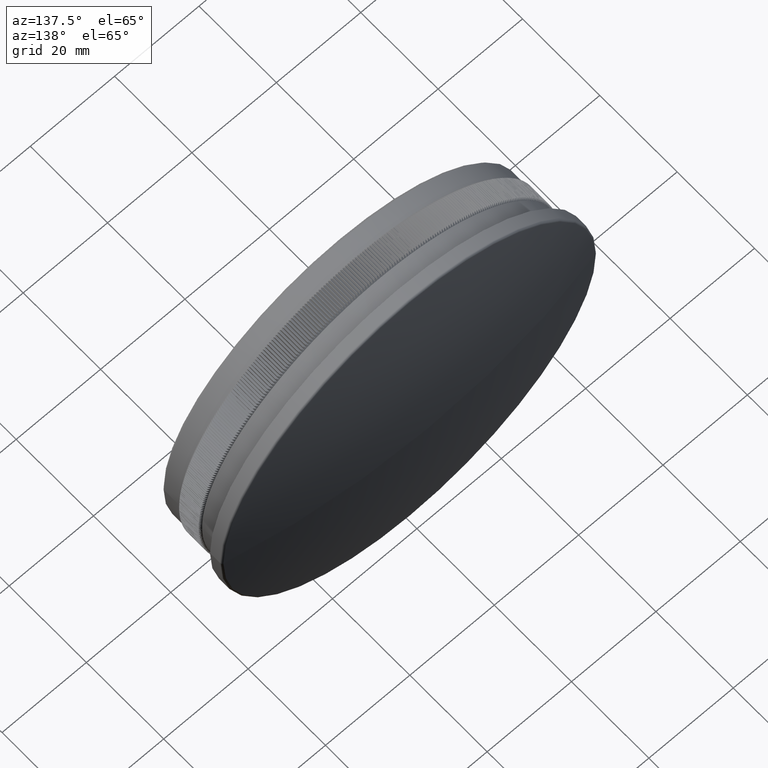
[diagram: clean part render]
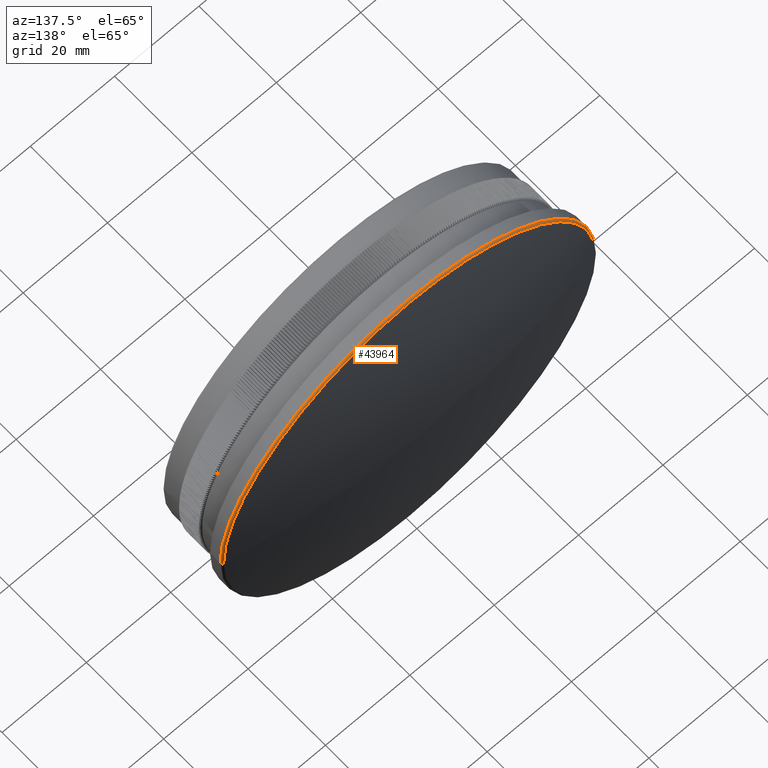
[diagram: same view with one face highlighted and labeled with its STEP entity id]
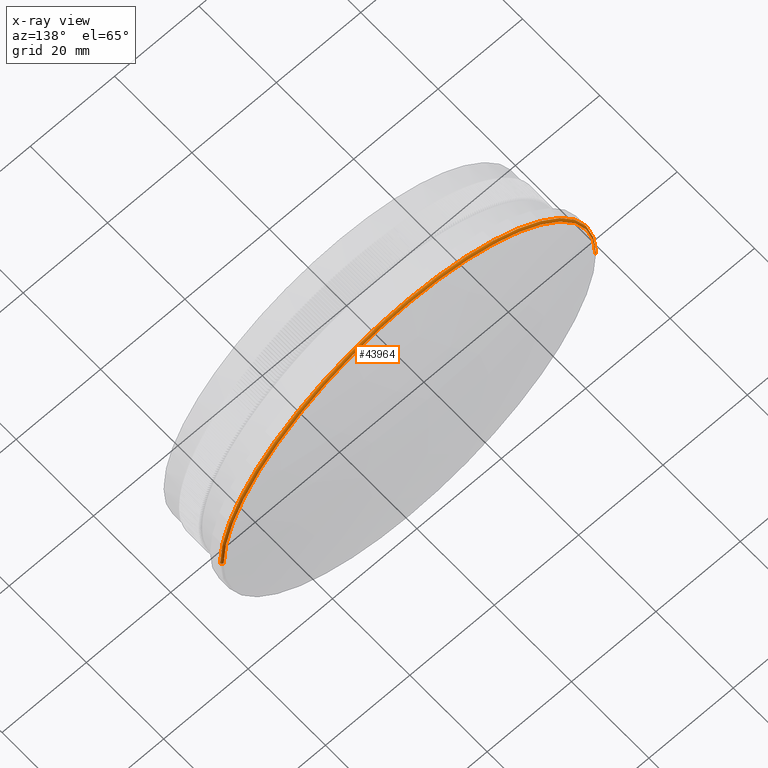
[diagram: x-ray of the same camera — body ghosted, the highlighted face saturated]
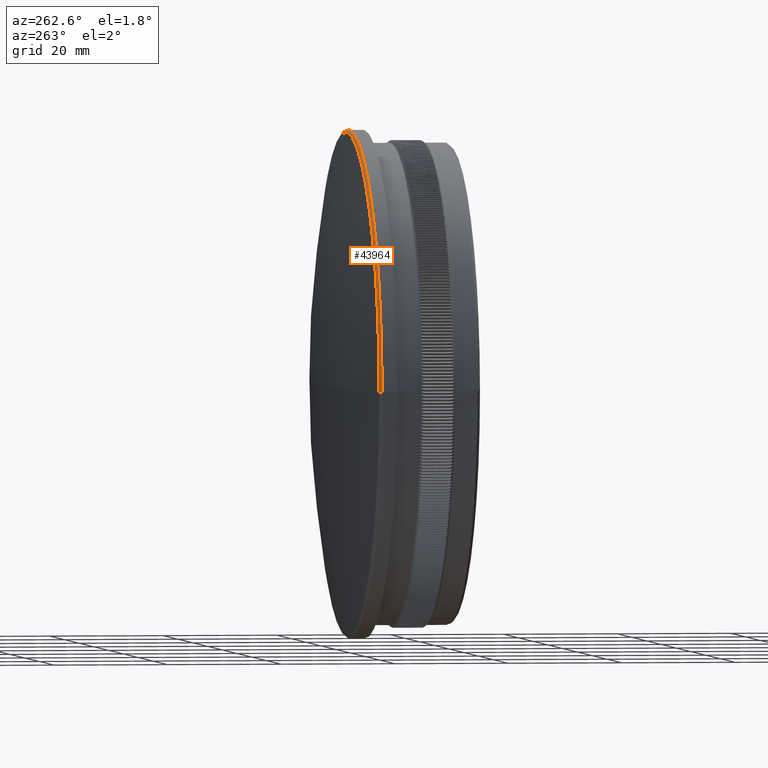
[diagram: same view with one face highlighted and labeled with its STEP entity id]
A machine part, auxiliary view. The second image highlights one B-rep face of the part: STEP entity #43964.
The next image is the same camera in x-ray: the body ghosted, the highlighted face saturated — about 0% of this face is hidden behind the body in this view.
A second angle (auxiliary view) of the same face is appended — the face is thin or edge-on in the first view.
In plain terms, the highlighted toroidal blend (fillet) surface has major radius 43.95 mm and minor (blend) radius 0.5 mm.
Its self-contained STEP definition (entity closure, byte-faithful):
#1572 = CARTESIAN_POINT ( 'NONE',  ( 6.938893903907228400E-015, 17.60070358833272800, 0.0000000000000000000 ) ) ;
#7108 = EDGE_CURVE ( 'NONE', #60075, #30478, #75101, .T. ) ;
#8927 = CIRCLE ( 'NONE', #58449, 44.45000000000001000 ) ;
#11584 = CARTESIAN_POINT ( 'NONE',  ( -44.45000000000000300, 17.60070358833287700, 5.443555022209985700E-015 ) ) ;
#12976 = TOROIDAL_SURFACE ( 'NONE', #72184, 43.94999999999998900, 0.5000000000000187600 ) ;
#13982 = EDGE_LOOP ( 'NONE', ( #42073, #35530, #33912, #36981 ) ) ;
#14466 = DIRECTION ( 'NONE',  ( 1.000000000000000000, -3.245114972974590400E-015, 0.0000000000000000000 ) ) ;
#15842 = DIRECTION ( 'NONE',  ( 1.000000000000000000, 0.0000000000000000000, -1.224646799147344600E-016 ) ) ;
#25392 = DIRECTION ( 'NONE',  ( -3.245114972974590400E-015, -1.000000000000000000, -0.0000000000000000000 ) ) ;
#27116 = AXIS2_PLACEMENT_3D ( 'NONE', #78009, #42586, #54892 ) ;
#30478 = VERTEX_POINT ( 'NONE', #33245 ) ;
#31963 = AXIS2_PLACEMENT_3D ( 'NONE', #68521, #50451, #49671 ) ;
#33245 = CARTESIAN_POINT ( 'NONE',  ( 44.45000000000001700, 17.60070358833258600, 0.0000000000000000000 ) ) ;
#33912 = ORIENTED_EDGE ( 'NONE', *, *, #64761, .F. ) ;
#35530 = ORIENTED_EDGE ( 'NONE', *, *, #70868, .T. ) ;
#36981 = ORIENTED_EDGE ( 'NONE', *, *, #7108, .F. ) ;
#41167 = FACE_OUTER_BOUND ( 'NONE', #13982, .T. ) ;
#42073 = ORIENTED_EDGE ( 'NONE', *, *, #43943, .T. ) ;
#42586 = DIRECTION ( 'NONE',  ( 0.0000000000000000000, 0.0000000000000000000, -1.000000000000000000 ) ) ;
#43943 = EDGE_CURVE ( 'NONE', #60075, #63791, #55251, .T. ) ;
#43964 = ADVANCED_FACE ( 'NONE', ( #41167 ), #12976, .T. ) ;
#46165 = CARTESIAN_POINT ( 'NONE',  ( 44.06010608514615300, 18.08842958724361700, 0.0000000000000000000 ) ) ;
#49671 = DIRECTION ( 'NONE',  ( 1.000000000000000000, -3.228483489240929000E-015, 0.0000000000000000000 ) ) ;
#49800 = CARTESIAN_POINT ( 'NONE',  ( -44.06010608514547800, 18.08842958724389800, 5.395806788726705300E-015 ) ) ;
#50451 = DIRECTION ( 'NONE',  ( -3.245114972974590400E-015, -1.000000000000000000, -0.0000000000000000000 ) ) ;
#51839 = DIRECTION ( 'NONE',  ( 1.224646799147353200E-016, -3.974119664518481600E-031, 1.000000000000000000 ) ) ;
#54892 = DIRECTION ( 'NONE',  ( -1.000000000000000000, 0.0000000000000000000, 0.0000000000000000000 ) ) ;
#55031 = AXIS2_PLACEMENT_3D ( 'NONE', #69403, #51839, #15842 ) ;
#55251 = CIRCLE ( 'NONE', #31963, 44.06010608514616700 ) ;
#55715 = DIRECTION ( 'NONE',  ( -3.245114972974590400E-015, -1.000000000000000000, -0.0000000000000000000 ) ) ;
#58449 = AXIS2_PLACEMENT_3D ( 'NONE', #61378, #25392, #67348 ) ;
#60075 = VERTEX_POINT ( 'NONE', #46165 ) ;
#61378 = CARTESIAN_POINT ( 'NONE',  ( 5.194467181792720200E-015, 17.60070358833273100, 0.0000000000000000000 ) ) ;
#62331 = CIRCLE ( 'NONE', #55031, 0.5000000000000213200 ) ;
#63791 = VERTEX_POINT ( 'NONE', #49800 ) ;
#64761 = EDGE_CURVE ( 'NONE', #30478, #78050, #8927, .T. ) ;
#67348 = DIRECTION ( 'NONE',  ( 1.000000000000000000, -3.278217592397115100E-015, 0.0000000000000000000 ) ) ;
#68521 = CARTESIAN_POINT ( 'NONE',  ( 6.777194123567939000E-015, 18.08842958724377300, 0.0000000000000000000 ) ) ;
#69403 = CARTESIAN_POINT ( 'NONE',  ( -43.94999999999998200, 17.60070358833287000, 5.382322682252615800E-015 ) ) ;
#70868 = EDGE_CURVE ( 'NONE', #63791, #78050, #62331, .T. ) ;
#72184 = AXIS2_PLACEMENT_3D ( 'NONE', #1572, #55715, #14466 ) ;
#75101 = CIRCLE ( 'NONE', #27116, 0.5000000000000213200 ) ;
#78009 = CARTESIAN_POINT ( 'NONE',  ( 43.94999999999999600, 17.60070358833258600, 0.0000000000000000000 ) ) ;
#78050 = VERTEX_POINT ( 'NONE', #11584 ) ;